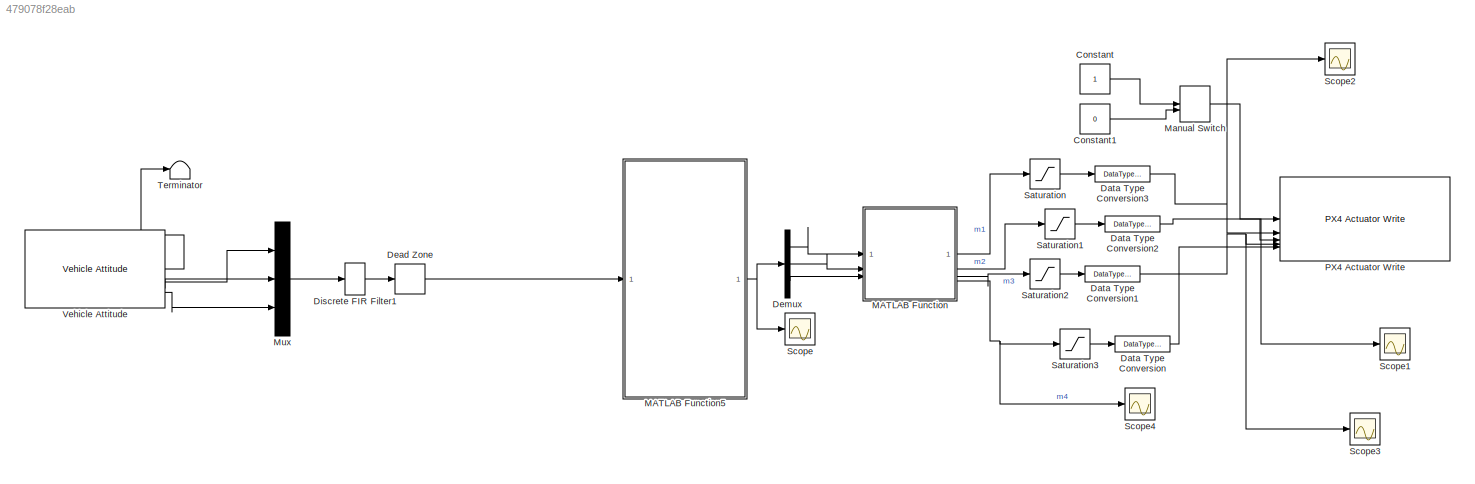
MODEL slx_479078f28eab
KIND model
CONFIG AbsTol = auto
CONFIG EnableMultiTasking = on
CONFIG FixedStep = 0.01
CONFIG InitFcn = load2slx
CONFIG MaxStep = auto
CONFIG MinStep = auto
CONFIG RelTol = 1e-3
CONFIG SampleTimeConstraint = Unconstrained
CONFIG SolverName = FixedStepAuto
CONFIG StartTime = 0.0
CONFIG StopTime = inf
WORKSPACE source: mxarray member
WORKSPACE F = [1.0101 0 0 1.02030201 0 0 1.0306070603 0 0 1.04101619161 0 0 ... (45 elements, 15x3)]
WORKSPACE G = [0.3357 0 0 0.33909057 0 0 0.342515384757 0 0 0.345974790143 0 0 ... (225 elements, 15x15)]
WORKSPACE H = [4.19586686919 -9.80424066465e-17 0 1.07234172774 -9.70620796422e-17 0 0.948924882083 -9.60915549373e-17 0 0.82560386835 -9.51307345186e-17 0 ... (225 elements, 15x15)]
WORKSPACE Pc = [-0.3357 0 0 0.3357 0 0 -0.33909057 0 0 0.33909057 0 0 ... (990 elements, 66x15)]
WORKSPACE Qvec = [1 0 0 0 0 0 0 0 0 0 0 0 ... (225 elements, 15x15)]
WORKSPACE Sc = [1.0101 0 0 -1.0101 0 0 1.02030201 0 0 -1.02030201 0 0 ... (198 elements, 66x3)]
WORKSPACE m = 3
WORKSPACE nu = 15
WORKSPACE qc = [1 1 1 1 1 1 1 1 1 1 1 1 ... (66 elements, 66x1)]
BLOCK [Constant] Constant
  OutDataTypeStr = boolean
BLOCK [Constant] Constant1
  OutDataTypeStr = boolean
  Value = 0
BLOCK [DataTypeConversion] Data Type Conversion
  OutDataTypeStr = single
  RndMeth = Floor
  SaturateOnIntegerOverflow = off
BLOCK [DataTypeConversion] Data Type Conversion1
  OutDataTypeStr = single
  RndMeth = Floor
  SaturateOnIntegerOverflow = off
BLOCK [DataTypeConversion] Data Type Conversion2
  OutDataTypeStr = single
  RndMeth = Floor
  SaturateOnIntegerOverflow = off
BLOCK [DataTypeConversion] Data Type Conversion3
  OutDataTypeStr = single
  RndMeth = Floor
  SaturateOnIntegerOverflow = off
BLOCK [DeadZone] Dead Zone
  Commented = through
  LowerValue = -0.017
  UpperValue = 0.017
BLOCK [Demux] Demux
  Outputs = 3
BLOCK [DiscreteFir] Discrete FIR Filter1
  CloseFcn = dspblkCoreblockFVToolHelper(gcbh,'close');
  Coefficients = [0.2 0.2 0.2 0.2 0.2]
  Commented = through
  CopyFcn = dspblkCoreblockFVToolHelper(gcbh,'copy');
  DeleteFcn = dspblkCoreblockFVToolHelper(gcbh,'close');
  InputPortMap = u0
  LoadFcn = dspblkCoreblockFVToolHelper(gcbh,'load');
  ModelCloseFcn = dspblkCoreblockFVToolHelper(gcbh,'close');
  OutputPortMap = o0
  PostSaveFcn = dspblkCoreblockFVToolHelper(gcbh,'postsave');
  PreSaveFcn = dspblkCoreblockFVToolHelper(gcbh,'presave');
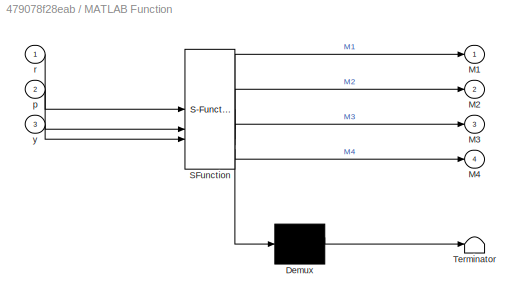
BLOCK [SubSystem] MATLAB Function
  ErrorFcn = Stateflow.Translate.translate
  PermitHierarchicalResolution = ExplicitOnly
  SFBlockType = MATLAB Function
  TreatAsAtomicUnit = on
BLOCK [Demux] MATLAB Function/ Demux 
  Outputs = 1
BLOCK [S-Function] MATLAB Function/ SFunction 
  EnableBusSupport = off
  FunctionName = sf_sfun
  PortCounts = [3 5]
  SFcnIsStateOwnerBlock = off
  SFunctionDeploymentMode = off
  Tag = Stateflow S-Function 2
BLOCK [Terminator] MATLAB Function/ Terminator 
BLOCK [Outport] MATLAB Function/M1
  VectorParamsAs1DForOutWhenUnconnected = off
BLOCK [Outport] MATLAB Function/M2
  Port = 2
BLOCK [Outport] MATLAB Function/M3
  Port = 3
BLOCK [Outport] MATLAB Function/M4
  Port = 4
BLOCK [Inport] MATLAB Function/p
  Port = 2
BLOCK [Inport] MATLAB Function/r
BLOCK [Inport] MATLAB Function/y
  Port = 3
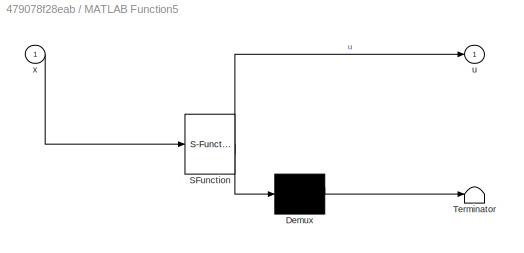
BLOCK [SubSystem] MATLAB Function5
  ErrorFcn = Stateflow.Translate.translate
  PermitHierarchicalResolution = ExplicitOnly
  SFBlockType = MATLAB Function
  SystemSampleTime = 0.01
  TreatAsAtomicUnit = on
BLOCK [Demux] MATLAB Function5/ Demux 
  Outputs = 1
BLOCK [S-Function] MATLAB Function5/ SFunction 
  EnableBusSupport = off
  FunctionName = sf_sfun
  Parameters = F,G,H,Pc,Qvec,Sc,qc
  PortCounts = [1 2]
  SFcnIsStateOwnerBlock = off
  SFunctionDeploymentMode = off
  Tag = Stateflow S-Function 6
BLOCK [Terminator] MATLAB Function5/ Terminator 
BLOCK [Outport] MATLAB Function5/u
  VectorParamsAs1DForOutWhenUnconnected = off
BLOCK [Inport] MATLAB Function5/x
BLOCK [ManualSwitch] Manual Switch
  CurrentSetting = 0
BLOCK [Mux] Mux
  DisplayOption = bar
  Inputs = 3
BLOCK [Reference] PX4 Actuator Write  REF=px4Peripheralslib/PX4 Actuator Write
  SourceBlock = px4Peripheralslib/PX4 Actuator Write
  SourceType = px4.internal.block.PX4Actuators
BLOCK [Saturate] Saturation
  LowerLimit = 0
  UpperLimit = 1
BLOCK [Saturate] Saturation1
  LowerLimit = 0
  UpperLimit = 1
BLOCK [Saturate] Saturation2
  LowerLimit = 0
  UpperLimit = 1
BLOCK [Saturate] Saturation3
  LowerLimit = 0
  UpperLimit = 1
BLOCK [Scope] Scope
  ActiveDisplayYMaximum = 0.25880684258194991
  ActiveDisplayYMinimum = -0.20094468799626919
  Floating = off
  GraphicalSettings = {"Style":{"BackgroundColor":[0.12941176470588237,0.12941176470588237,0.12941176470588237],"AxesColor":[0.07058823529411765,0.07058823529411765,0.07058823529411765],"LabelsColor":[0.8509803921568627,0.8509803921568627,0.8509803921568627],"PreserveColors":false,"Visible":[true,true,true],"LineStyle":["-","-","-"],"LineWidth":[1.5,1.5,1.5],"BarWidth":[0.9,0.9,0.9],"LineColor":["auto","auto","auto"],"...<+2292ch>
  MultipleDisplayCache = [{"MaxYLimMag":0.25880684258194991,"MaxYLimReal":0.25880684258194991,"MinYLimMag":0,"MinYLimReal":-0.20094468799626919,"PlotAsMagnitudePhase":false,"ShowGrid":true,"ShowLegend":true,"Title":"%<SignalLabel>","YLabel":""}]
  NumInputPorts = 1
  ScopeFrameLocation = window
  ShowLegend = on
  WasSavedAsWebScope = on
  WindowPosition = [2173.000000,247.000000,1348.000000,703.000000,]
BLOCK [Scope] Scope1
  ActiveDisplayYMaximum = 0.21324986033141613
  ActiveDisplayYMinimum = 0.204619275406003
  DataLoggingVariableName = ScopeData1
  Floating = off
  GraphicalSettings = {"Style":{"BackgroundColor":[0.12941176470588237,0.12941176470588237,0.12941176470588237],"AxesColor":[0.07058823529411765,0.07058823529411765,0.07058823529411765],"LabelsColor":[0.8509803921568627,0.8509803921568627,0.8509803921568627],"PreserveColors":false,"Visible":[true],"LineStyle":["-"],"LineWidth":[1.5],"BarWidth":[0.9],"LineColor":["auto"],"LineFaceAlpha":[1],"LineEdgeAlpha":[1],"Marker":...<+2028ch>
  MultipleDisplayCache = [{"MaxYLimMag":0.21324986033141613,"MaxYLimReal":0.21324986033141613,"MinYLimMag":0.204619275406003,"MinYLimReal":0.204619275406003,"PlotAsMagnitudePhase":false,"ShowGrid":true,"ShowLegend":false,"Title":"%<SignalLabel>","YLabel":""}]
  NumInputPorts = 1
  ScopeFrameLocation = window
  Visible = on
  WasSavedAsWebScope = on
  WindowPosition = [2297.000000,128.000000,560.000000,420.000000,]
BLOCK [Scope] Scope2
  ActiveDisplayYMaximum = 0.64960764907300472
  ActiveDisplayYMinimum = 0.00829335488379003
  DataLoggingVariableName = ScopeData2
  Floating = off
  GraphicalSettings = {"Style":{"BackgroundColor":[0.12941176470588237,0.12941176470588237,0.12941176470588237],"AxesColor":[0.07058823529411765,0.07058823529411765,0.07058823529411765],"LabelsColor":[0.8509803921568627,0.8509803921568627,0.8509803921568627],"PreserveColors":false,"Visible":[true],"LineStyle":["-"],"LineWidth":[1.5],"BarWidth":[0.9],"LineColor":["auto"],"LineFaceAlpha":[1],"LineEdgeAlpha":[1],"Marker":...<+2063ch>
  MultipleDisplayCache = [{"MaxYLimMag":0.64960764907300472,"MaxYLimReal":0.64960764907300472,"MinYLimMag":0.00829335488379003,"MinYLimReal":0.00829335488379003,"PlotAsMagnitudePhase":false,"ShowGrid":true,"ShowLegend":false,"Title":"%<SignalLabel>","YLabel":""}]
  NumInputPorts = 1
  ScopeFrameLocation = window
  Visible = on
  WasSavedAsWebScope = on
  WindowPosition = [3109.000000,600.000000,560.000000,420.000000,]
BLOCK [Scope] Scope3
  ActiveDisplayYMaximum = 0.57265901246140893
  ActiveDisplayYMinimum = 0.086084697037949576
  DataLoggingVariableName = ScopeData3
  Floating = off
  GraphicalSettings = {"Style":{"BackgroundColor":[0.12941176470588237,0.12941176470588237,0.12941176470588237],"AxesColor":[0.07058823529411765,0.07058823529411765,0.07058823529411765],"LabelsColor":[0.8509803921568627,0.8509803921568627,0.8509803921568627],"PreserveColors":false,"Visible":[true],"LineStyle":["-"],"LineWidth":[1.5],"BarWidth":[0.9],"LineColor":["auto"],"LineFaceAlpha":[1],"LineEdgeAlpha":[1],"Marker":...<+2065ch>
  MultipleDisplayCache = [{"MaxYLimMag":0.63546668831259012,"MaxYLimReal":0.57265901246140893,"MinYLimMag":0.014460860751569285,"MinYLimReal":0.086084697037949576,"PlotAsMagnitudePhase":false,"ShowGrid":true,"ShowLegend":false,"Title":"%<SignalLabel>","YLabel":""}]
  NumInputPorts = 1
  ScopeFrameLocation = window
  Visible = on
  WasSavedAsWebScope = on
  WindowPosition = [2306.000000,602.000000,560.000000,420.000000,]
BLOCK [Scope] Scope4
  ActiveDisplayYMaximum = 0.86308686784221988
  ActiveDisplayYMinimum = 0.09643536073618425
  DataLoggingVariableName = ScopeData4
  Floating = off
  GraphicalSettings = {"Style":{"BackgroundColor":[0.12941176470588237,0.12941176470588237,0.12941176470588237],"AxesColor":[0.07058823529411765,0.07058823529411765,0.07058823529411765],"LabelsColor":[0.8509803921568627,0.8509803921568627,0.8509803921568627],"PreserveColors":false,"Visible":[true],"LineStyle":["-"],"LineWidth":[1.5],"BarWidth":[0.9],"LineColor":["auto"],"LineFaceAlpha":[1],"LineEdgeAlpha":[1],"Marker":...<+2025ch>
  MultipleDisplayCache = [{"MaxYLimMag":0.86308686784221988,"MaxYLimReal":0.86308686784221988,"MinYLimMag":0.09643536073618425,"MinYLimReal":0.09643536073618425,"PlotAsMagnitudePhase":false,"ShowGrid":true,"ShowLegend":false,"Title":"%<SignalLabel>","YLabel":""}]
  NumInputPorts = 1
  ScopeFrameLocation = window
  Visible = on
  WasSavedAsWebScope = on
  WindowPosition = [3203.000000,108.000000,560.000000,420.000000,]
BLOCK [Terminator] Terminator
BLOCK [Reference] Vehicle Attitude  REF=px4Sensorslib/Vehicle Attitude
  SourceBlock = px4Sensorslib/Vehicle Attitude
  SourceType = PX4 Vehicle Attitude
LINE Constant1:1 -> Manual Switch:2
LINE Constant:1 -> Manual Switch:1
NET Data Type Conversion1:1 -> PX4 Actuator Write:4, Scope3:1
NET Data Type Conversion2:1 -> PX4 Actuator Write:3, Scope1:1
NET Data Type Conversion3:1 -> PX4 Actuator Write:2, Scope2:1
LINE Data Type Conversion:1 -> PX4 Actuator Write:5
LINE Dead Zone:1 -> MATLAB Function5:1
LINE Demux:1 -> MATLAB Function:1
LINE Demux:2 -> MATLAB Function:2
LINE Demux:3 -> MATLAB Function:3
LINE Discrete FIR Filter1:1 -> Dead Zone:1
NET MATLAB Function5:1 -> Demux:1, Scope:1
LINE MATLAB Function:1 -> Saturation:1
LINE MATLAB Function:2 -> Saturation1:1
LINE MATLAB Function:3 -> Saturation2:1
NET MATLAB Function:4 -> Saturation3:1, Scope4:1
LINE Manual Switch:1 -> PX4 Actuator Write:1
LINE Mux:1 -> Discrete FIR Filter1:1
LINE Saturation1:1 -> Data Type Conversion2:1
LINE Saturation2:1 -> Data Type Conversion1:1
LINE Saturation3:1 -> Data Type Conversion:1
LINE Saturation:1 -> Data Type Conversion3:1
LINE Vehicle Attitude:1 -> Terminator:1
LINE Vehicle Attitude:2 -> Mux:1
LINE Vehicle Attitude:3 -> Mux:2
LINE Vehicle Attitude:4 -> Mux:3
note: NET lines group one-source signal fan-out (src -> all destinations, sorted); 1:1 wires keep LINE
CHART MATLAB Function states=1 transitions=1
  STATE_LABEL 'eML_blk_kernel()'
  STATE_LABEL 'SCRIPT:\nfunction [M1,M2,M3,M4] = fcn( r, p, y)\n% t: thrust\n% r: roll\n% p: pitch\n% y: yaw\npersistent trim mixer thrust\n% M1 = t + r + p - y;\n% M2 = t - r - p - y;\n% M3 = t - r + p + y;\n% M4 = t + r - p + y;\ntrim = [0.1344;0.2078;0.1551;0.2548];\nthrust = 0;\nu = [r;p;y; thrust];\nmixer = [-1 1 1 -1;\n        1 -1 1 -1;\n        1 1 -1 -1\n        1 1 1 1];\nM = mixer\\u;\nM1= M(1,1)+trim(1,1);\nM2= M(2,1)+tr...<+53ch>'
CHART MATLAB Function5 states=1 transitions=1
  STATE_LABEL 'eML_blk_kernel()'
  STATE_LABEL "SCRIPT:\nfunction u = mpc_function(x, H, F, Qvec, G, Pc, qc, Sc)\npersistent opts x0 u_prev\nx = double(x);\nif isempty(u_prev)\n    u_prev = zeros(3,1,'double');\nend\n\nif isempty(x0)\n    x0 = zeros(15,1,'double');\nend\n% uvec = zeros(nu,1);\n\n% === Construcción del QP ===\nf = (2*x'*F'*Qvec*G)';\n\n% Resolver QP\nif isempty(opts)\nopts = optimoptions('quadprog', 'Algorithm','active-set','Display','off');\nend\n...<+198ch>"
CHART  states=0 transitions=0
CHART  states=0 transitions=0
